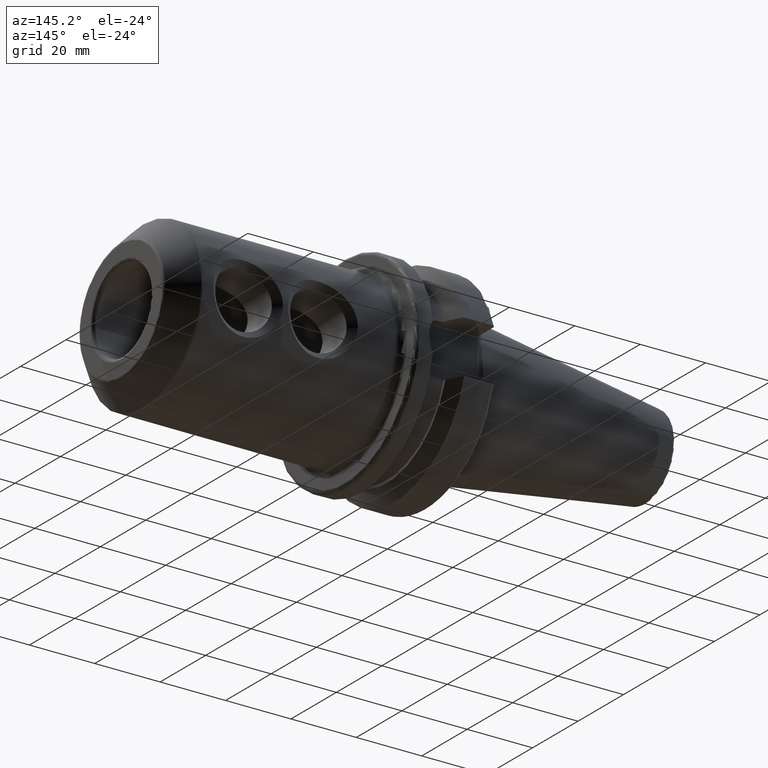
[diagram: clean part render]
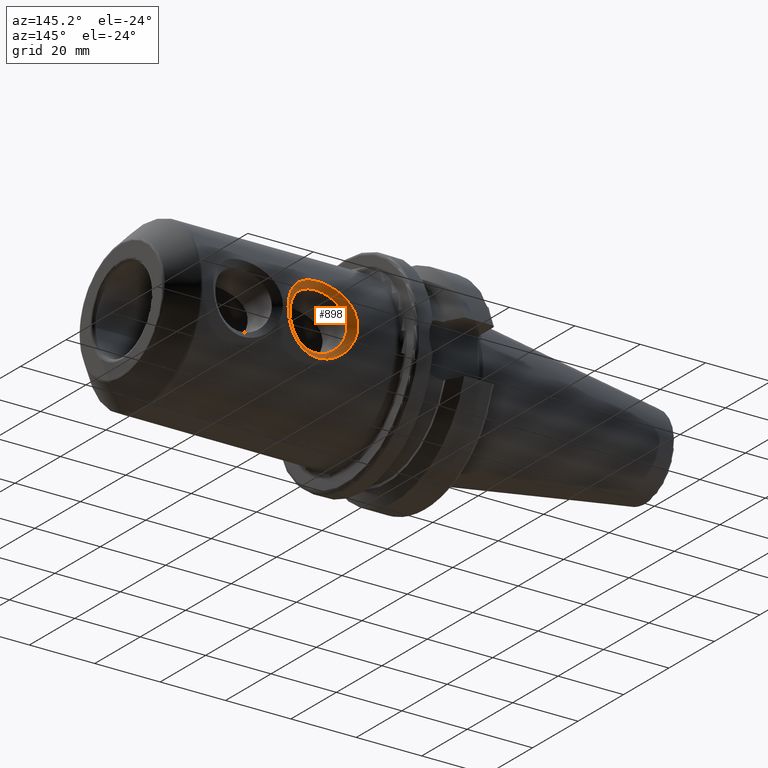
[diagram: same view with one face highlighted and labeled with its STEP entity id]
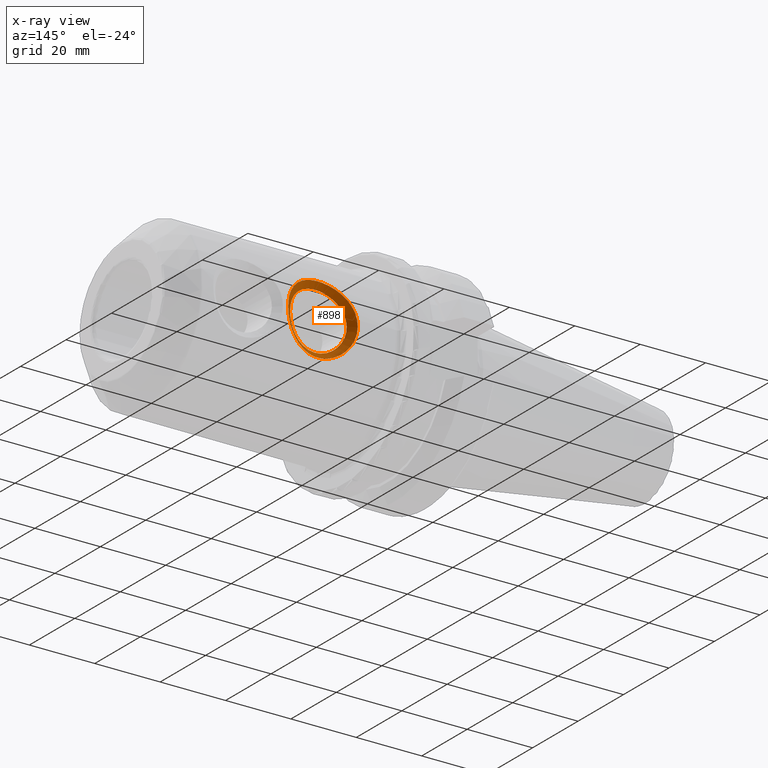
[diagram: x-ray of the same camera — body ghosted, the highlighted face saturated]
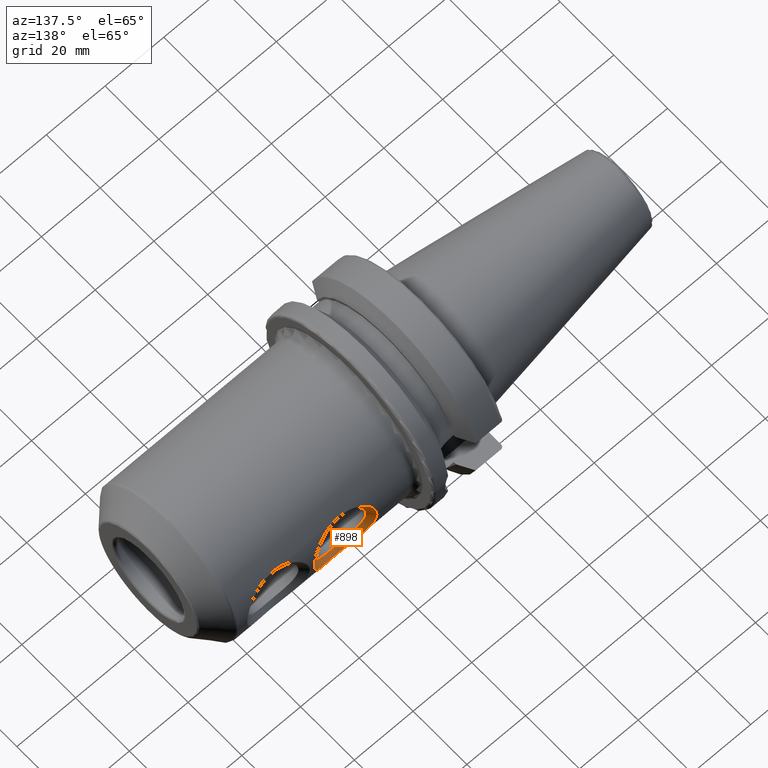
[diagram: same view with one face highlighted and labeled with its STEP entity id]
A machine part, auxiliary view. The second image highlights one B-rep face of the part: STEP entity #898.
The next image is the same camera in x-ray: the body ghosted, the highlighted face saturated — about 0% of this face is hidden behind the body in this view.
A second angle (auxiliary view) of the same face is appended — the face is thin or edge-on in the first view.
In plain terms, the highlighted face is a freeform B-spline surface patch.
Its self-contained STEP definition (entity closure, byte-faithful):
#19=B_SPLINE_SURFACE_WITH_KNOTS('',3,3,((#1556,#1557,#1558,#1559,#1560,
#1561,#1562,#1563,#1564,#1565,#1566,#1567,#1568,#1569,#1570,#1571,#1572,
#1573,#1574,#1575,#1576,#1577,#1578,#1579,#1580,#1581,#1582,#1583,#1584,
#1585,#1586,#1587,#1588,#1589),(#1590,#1591,#1592,#1593,#1594,#1595,#1596,
#1597,#1598,#1599,#1600,#1601,#1602,#1603,#1604,#1605,#1606,#1607,#1608,
#1609,#1610,#1611,#1612,#1613,#1614,#1615,#1616,#1617,#1618,#1619,#1620,
#1621,#1622,#1623),(#1624,#1625,#1626,#1627,#1628,#1629,#1630,#1631,#1632,
#1633,#1634,#1635,#1636,#1637,#1638,#1639,#1640,#1641,#1642,#1643,#1644,
#1645,#1646,#1647,#1648,#1649,#1650,#1651,#1652,#1653,#1654,#1655,#1656,
#1657),(#1658,#1659,#1660,#1661,#1662,#1663,#1664,#1665,#1666,#1667,#1668,
#1669,#1670,#1671,#1672,#1673,#1674,#1675,#1676,#1677,#1678,#1679,#1680,
#1681,#1682,#1683,#1684,#1685,#1686,#1687,#1688,#1689,#1690,#1691)),
 .UNSPECIFIED.,.F.,.T.,.F.,(4,4),(4,1,1,1,1,1,1,1,1,1,1,1,1,1,1,1,1,1,1,
1,1,1,1,1,1,1,1,1,1,1,1,4),(0.,1.),(3.94966474206138,4.13774401549287,4.32582328892437,
4.51390256235586,4.70198183578735,4.89006110921885,5.07814038265034,5.45429892951333,
5.61103165737291,5.70507129408866,5.83045747637632,5.95584365866398,6.20661602323931,
6.26930911438314,6.45738838781463,6.70816075238996,6.95893311696529,7.08431929925295,
7.20970548154061,7.24105202711253,7.33509166382827,7.46047784611594,7.71125021069126,
7.83663639297893,7.96202257526659,8.21279493984191,8.46356730441724,8.65164657784873,
8.69866639620661,8.83972585128023,9.02780512471172,9.21588439814322),
 .UNSPECIFIED.);
#35=B_SPLINE_CURVE_WITH_KNOTS('',3,(#1515,#1516,#1517,#1518,#1519,#1520,
#1521,#1522,#1523,#1524,#1525,#1526,#1527,#1528,#1529,#1530,#1531,#1532,
#1533,#1534,#1535,#1536,#1537,#1538,#1539,#1540,#1541,#1542,#1543,#1544,
#1545,#1546,#1547,#1548),.UNSPECIFIED.,.T.,.F.,(4,1,1,1,1,1,1,1,1,1,1,1,
1,1,1,1,1,1,1,1,1,1,1,1,1,1,1,1,1,1,1,4),(-9.21588439814322,-9.02780512471172,
-8.83972585128023,-8.69866639620661,-8.65164657784873,-8.46356730441724,
-8.21279493984191,-7.96202257526659,-7.83663639297893,-7.71125021069126,
-7.46047784611594,-7.33509166382827,-7.24105202711253,-7.20970548154061,
-7.08431929925295,-6.95893311696529,-6.70816075238996,-6.45738838781463,
-6.26930911438314,-6.20661602323931,-5.95584365866398,-5.83045747637632,
-5.70507129408866,-5.61103165737291,-5.45429892951333,-5.07814038265034,
-4.89006110921885,-4.70198183578735,-4.51390256235586,-4.32582328892437,
-4.13774401549287,-3.94966474206138),.UNSPECIFIED.);
#36=B_SPLINE_CURVE_WITH_KNOTS('',3,(#1694,#1695,#1696,#1697,#1698,#1699,
#1700,#1701,#1702,#1703,#1704,#1705,#1706,#1707,#1708,#1709,#1710,#1711,
#1712,#1713,#1714,#1715,#1716,#1717,#1718,#1719,#1720,#1721,#1722,#1723,
#1724,#1725,#1726,#1727),.UNSPECIFIED.,.T.,.F.,(4,1,1,1,1,1,1,1,1,1,1,1,
1,1,1,1,1,1,1,1,1,1,1,1,1,1,1,1,1,1,1,4),(3.94966474206138,4.13774401549287,
4.32582328892437,4.51390256235586,4.70198183578735,4.89006110921885,5.07814038265034,
5.45429892951333,5.61103165737291,5.70507129408866,5.83045747637632,5.95584365866398,
6.20661602323931,6.26930911438314,6.45738838781463,6.70816075238996,6.95893311696529,
7.08431929925295,7.20970548154061,7.24105202711253,7.33509166382827,7.46047784611594,
7.71125021069126,7.83663639297893,7.96202257526659,8.21279493984191,8.46356730441724,
8.65164657784873,8.69866639620661,8.83972585128023,9.02780512471172,9.21588439814322),
 .UNSPECIFIED.);
#56=LINE('',#1693,#103);
#103=VECTOR('',#1144,10.);
#202=FACE_OUTER_BOUND('',#263,.T.);
#263=EDGE_LOOP('',(#653,#654,#655,#656));
#396=VERTEX_POINT('',#1514);
#399=VERTEX_POINT('',#1692);
#492=EDGE_CURVE('',#396,#396,#35,.T.);
#496=EDGE_CURVE('',#396,#399,#56,.T.);
#497=EDGE_CURVE('',#399,#399,#36,.T.);
#653=ORIENTED_EDGE('',*,*,#496,.T.);
#654=ORIENTED_EDGE('',*,*,#497,.T.);
#655=ORIENTED_EDGE('',*,*,#496,.F.);
#656=ORIENTED_EDGE('',*,*,#492,.T.);
#898=ADVANCED_FACE('',(#202),#19,.T.);
#1144=DIRECTION('',(-0.707106781186548,-0.707106781186547,-1.96261557335472E-16));
#1514=CARTESIAN_POINT('',(61.9114,25.4,-2.77555756156289E-16));
#1515=CARTESIAN_POINT('Ctrl Pts',(61.9114,25.4,-2.77555756156289E-16));
#1516=CARTESIAN_POINT('Ctrl Pts',(61.9114,25.4,-0.771695247790042));
#1517=CARTESIAN_POINT('Ctrl Pts',(61.7399911650118,25.3271318800761,-2.37180460762669));
#1518=CARTESIAN_POINT('Ctrl Pts',(60.9943996541421,25.025290231097,-4.48793340954392));
#1519=CARTESIAN_POINT('Ctrl Pts',(60.1713040633731,24.7223615543875,-5.85704679593909));
#1520=CARTESIAN_POINT('Ctrl Pts',(59.2205042983215,24.3999293587715,-7.09282633498404));
#1521=CARTESIAN_POINT('Ctrl Pts',(57.8503005340776,23.9766848835628,-8.4485181316021));
#1522=CARTESIAN_POINT('Ctrl Pts',(55.2598431977622,23.3838048879771,-9.94602613646829));
#1523=CARTESIAN_POINT('Ctrl Pts',(52.5525433637204,23.1157511349183,-10.5239036660997));
#1524=CARTESIAN_POINT('Ctrl Pts',(50.4712874652806,23.118046552326,-10.522758300789));
#1525=CARTESIAN_POINT('Ctrl Pts',(48.3224311993121,23.2547157468926,-10.2193904046286));
#1526=CARTESIAN_POINT('Ctrl Pts',(46.267658779507,23.5971331420984,-9.43056043559628));
#1527=CARTESIAN_POINT('Ctrl Pts',(44.6246296208833,24.0044983634342,-8.3198830494841));
#1528=CARTESIAN_POINT('Ctrl Pts',(43.8643680424981,24.2236577180062,-7.64756446957003));
#1529=CARTESIAN_POINT('Ctrl Pts',(43.1651701703101,24.4391263006551,-6.93453570642253));
#1530=CARTESIAN_POINT('Ctrl Pts',(42.4279103256792,24.685356638447,-6.02722114071626));
#1531=CARTESIAN_POINT('Ctrl Pts',(41.3432374696174,25.0865462055431,-4.20098242246115));
#1532=CARTESIAN_POINT('Ctrl Pts',(40.5431573482715,25.4186301529308,-1.55714566212273));
#1533=CARTESIAN_POINT('Ctrl Pts',(40.5492359159337,25.416117312402,1.29791745038304));
#1534=CARTESIAN_POINT('Ctrl Pts',(41.1017573767964,25.1870154236672,3.41001178685778));
#1535=CARTESIAN_POINT('Ctrl Pts',(41.9709923194313,24.8499410974905,5.3737216987548));
#1536=CARTESIAN_POINT('Ctrl Pts',(43.0390381299265,24.4668288211528,6.89446260949005));
#1537=CARTESIAN_POINT('Ctrl Pts',(44.5111131867361,24.0329202560619,8.23985161748191));
#1538=CARTESIAN_POINT('Ctrl Pts',(45.7233609094118,23.7326008885747,9.06114198828464));
#1539=CARTESIAN_POINT('Ctrl Pts',(47.1623531991094,23.4470947613146,9.77663376668937));
#1540=CARTESIAN_POINT('Ctrl Pts',(49.7828208942659,23.0833700774164,10.6053337282212));
#1541=CARTESIAN_POINT('Ctrl Pts',(52.8561774593487,23.0845897914445,10.6029617565868));
#1542=CARTESIAN_POINT('Ctrl Pts',(55.9853374865726,23.5446076138927,9.55421965811844));
#1543=CARTESIAN_POINT('Ctrl Pts',(58.0221108925131,24.0309681484285,8.26991865558432));
#1544=CARTESIAN_POINT('Ctrl Pts',(59.624332640913,24.5238136344149,6.70007520025947));
#1545=CARTESIAN_POINT('Ctrl Pts',(60.9309640933498,24.9988716665897,4.67907329865054));
#1546=CARTESIAN_POINT('Ctrl Pts',(61.7374364848113,25.3265203307549,2.37267051828525));
#1547=CARTESIAN_POINT('Ctrl Pts',(61.9114,25.4,0.771695247790007));
#1548=CARTESIAN_POINT('Ctrl Pts',(61.9114,25.4,-5.55111512312578E-16));
#1556=CARTESIAN_POINT('Ctrl Pts',(61.9114,25.4,-5.55111512312578E-16));
#1557=CARTESIAN_POINT('Ctrl Pts',(61.9114,25.4,0.771695247790007));
#1558=CARTESIAN_POINT('Ctrl Pts',(61.7374364848113,25.3265203307549,2.37267051828525));
#1559=CARTESIAN_POINT('Ctrl Pts',(60.9309640933498,24.9988716665897,4.67907329865054));
#1560=CARTESIAN_POINT('Ctrl Pts',(59.624332640913,24.5238136344149,6.70007520025947));
#1561=CARTESIAN_POINT('Ctrl Pts',(58.0221108925131,24.0309681484285,8.26991865558432));
#1562=CARTESIAN_POINT('Ctrl Pts',(55.9853374865726,23.5446076138927,9.55421965811844));
#1563=CARTESIAN_POINT('Ctrl Pts',(52.8561774593487,23.0845897914445,10.6029617565868));
#1564=CARTESIAN_POINT('Ctrl Pts',(49.7828208942659,23.0833700774164,10.6053337282212));
#1565=CARTESIAN_POINT('Ctrl Pts',(47.1623531991094,23.4470947613146,9.77663376668937));
#1566=CARTESIAN_POINT('Ctrl Pts',(45.7233609094118,23.7326008885747,9.06114198828464));
#1567=CARTESIAN_POINT('Ctrl Pts',(44.5111131867361,24.0329202560619,8.23985161748191));
#1568=CARTESIAN_POINT('Ctrl Pts',(43.0390381299265,24.4668288211528,6.89446260949005));
#1569=CARTESIAN_POINT('Ctrl Pts',(41.9709923194313,24.8499410974905,5.3737216987548));
#1570=CARTESIAN_POINT('Ctrl Pts',(41.1017573767964,25.1870154236672,3.41001178685778));
#1571=CARTESIAN_POINT('Ctrl Pts',(40.5492359159337,25.416117312402,1.29791745038304));
#1572=CARTESIAN_POINT('Ctrl Pts',(40.5431573482715,25.4186301529308,-1.55714566212273));
#1573=CARTESIAN_POINT('Ctrl Pts',(41.3432374696174,25.0865462055431,-4.20098242246115));
#1574=CARTESIAN_POINT('Ctrl Pts',(42.4279103256792,24.685356638447,-6.02722114071626));
#1575=CARTESIAN_POINT('Ctrl Pts',(43.1651701703101,24.4391263006551,-6.93453570642253));
#1576=CARTESIAN_POINT('Ctrl Pts',(43.8643680424981,24.2236577180062,-7.64756446957003));
#1577=CARTESIAN_POINT('Ctrl Pts',(44.6246296208833,24.0044983634342,-8.3198830494841));
#1578=CARTESIAN_POINT('Ctrl Pts',(46.267658779507,23.5971331420984,-9.43056043559628));
#1579=CARTESIAN_POINT('Ctrl Pts',(48.3224311993121,23.2547157468926,-10.2193904046286));
#1580=CARTESIAN_POINT('Ctrl Pts',(50.4712874652806,23.118046552326,-10.522758300789));
#1581=CARTESIAN_POINT('Ctrl Pts',(52.5525433637204,23.1157511349183,-10.5239036660997));
#1582=CARTESIAN_POINT('Ctrl Pts',(55.2598431977622,23.3838048879771,-9.94602613646829));
#1583=CARTESIAN_POINT('Ctrl Pts',(57.8503005340776,23.9766848835628,-8.4485181316021));
#1584=CARTESIAN_POINT('Ctrl Pts',(59.2205042983215,24.3999293587715,-7.09282633498404));
#1585=CARTESIAN_POINT('Ctrl Pts',(60.1713040633731,24.7223615543875,-5.85704679593909));
#1586=CARTESIAN_POINT('Ctrl Pts',(60.9943996541421,25.025290231097,-4.48793340954392));
#1587=CARTESIAN_POINT('Ctrl Pts',(61.7399911650118,25.3271318800761,-2.37180460762669));
#1588=CARTESIAN_POINT('Ctrl Pts',(61.9114,25.4,-0.771695247790042));
#1589=CARTESIAN_POINT('Ctrl Pts',(61.9114,25.4,-2.77555756156289E-16));
#1590=CARTESIAN_POINT('Ctrl Pts',(61.2447333333333,24.7333333333333,-7.40148683083438E-16));
#1591=CARTESIAN_POINT('Ctrl Pts',(61.2447333333333,24.7333333333333,0.7069855894408));
#1592=CARTESIAN_POINT('Ctrl Pts',(61.0889616207494,24.6695270151585,2.17372884191534));
#1593=CARTESIAN_POINT('Ctrl Pts',(60.3621591767821,24.3835289251207,4.30509198884616));
#1594=CARTESIAN_POINT('Ctrl Pts',(59.1677860466987,23.9646777919745,6.20254161922104));
#1595=CARTESIAN_POINT('Ctrl Pts',(57.6817717918878,23.5258688004918,7.70219782248225));
#1596=CARTESIAN_POINT('Ctrl Pts',(55.7671356392392,23.0892946944218,8.94911130966596));
#1597=CARTESIAN_POINT('Ctrl Pts',(52.7911621125706,22.6734556297245,9.98395179806838));
#1598=CARTESIAN_POINT('Ctrl Pts',(49.8421468100004,22.6723217713955,9.98639818409622));
#1599=CARTESIAN_POINT('Ctrl Pts',(47.3487285407155,23.0011581882307,9.16854024996272));
#1600=CARTESIAN_POINT('Ctrl Pts',(45.9887378312617,23.2580869772785,8.47008868840656));
#1601=CARTESIAN_POINT('Ctrl Pts',(44.851367922731,23.5272773586981,7.67529775205578));
#1602=CARTESIAN_POINT('Ctrl Pts',(43.4823940370027,23.9141556291463,6.38717077792263));
#1603=CARTESIAN_POINT('Ctrl Pts',(42.5044539877144,24.2524352332204,4.95489465379959));
#1604=CARTESIAN_POINT('Ctrl Pts',(41.7161849643699,24.5479046054376,3.13113006799037));
#1605=CARTESIAN_POINT('Ctrl Pts',(41.2198420603825,24.7473817104704,1.18645216011521));
#1606=CARTESIAN_POINT('Ctrl Pts',(41.214310282294,24.7496169076289,-1.42341882745942));
#1607=CARTESIAN_POINT('Ctrl Pts',(41.9330776329512,24.4604056373309,-3.86034661506238));
#1608=CARTESIAN_POINT('Ctrl Pts',(42.9225520916996,24.1072012715033,-5.5701798719287));
#1609=CARTESIAN_POINT('Ctrl Pts',(43.6018279715672,23.8889944554488,-6.42881904041131));
#1610=CARTESIAN_POINT('Ctrl Pts',(44.2499510504767,23.6973287496202,-7.1082941397485));
#1611=CARTESIAN_POINT('Ctrl Pts',(44.9578082687025,23.5018253477278,-7.75255638489856));
#1612=CARTESIAN_POINT('Ctrl Pts',(46.4992739666946,23.13666776465,-8.82763579170448));
#1613=CARTESIAN_POINT('Ctrl Pts',(48.4506749021776,22.8273355547878,-9.60492329244439));
#1614=CARTESIAN_POINT('Ctrl Pts',(50.5047714205568,22.7036023910288,-9.90533755108544));
#1615=CARTESIAN_POINT('Ctrl Pts',(52.4965696089097,22.701454691795,-9.90693800894312));
#1616=CARTESIAN_POINT('Ctrl Pts',(55.0824772072718,22.9444269556295,-9.33269048920593));
#1617=CARTESIAN_POINT('Ctrl Pts',(57.522937124137,23.477655557275,-7.87229133567426));
#1618=CARTESIAN_POINT('Ctrl Pts',(58.7931084770233,23.8543399150261,-6.57790071279669));
#1619=CARTESIAN_POINT('Ctrl Pts',(59.667869670456,24.1397604828142,-5.41094124953641));
#1620=CARTESIAN_POINT('Ctrl Pts',(60.4191185357353,24.406547412978,-4.12863405162999));
#1621=CARTESIAN_POINT('Ctrl Pts',(61.0914017090038,24.6700900666847,-2.17280850307922));
#1622=CARTESIAN_POINT('Ctrl Pts',(61.2447333333333,24.7333333333333,-0.70698558944082));
#1623=CARTESIAN_POINT('Ctrl Pts',(61.2447333333333,24.7333333333333,-3.70074341541719E-16));
#1624=CARTESIAN_POINT('Ctrl Pts',(60.5780666666667,24.0666666666667,-9.25185853854297E-16));
#1625=CARTESIAN_POINT('Ctrl Pts',(60.5780666666667,24.0666666666667,0.642275931091594));
#1626=CARTESIAN_POINT('Ctrl Pts',(60.4404867566874,24.012533699562,1.97478716554543));
#1627=CARTESIAN_POINT('Ctrl Pts',(59.7933542602145,23.7681861836516,3.93111067904178));
#1628=CARTESIAN_POINT('Ctrl Pts',(58.7112394524843,23.4055419495342,5.7050080381826));
#1629=CARTESIAN_POINT('Ctrl Pts',(57.3414326912624,23.0207694525551,7.13447698938017));
#1630=CARTESIAN_POINT('Ctrl Pts',(55.5489337919056,22.6339817749509,8.34400296121348));
#1631=CARTESIAN_POINT('Ctrl Pts',(52.7261467657924,22.2623214680045,9.36494183954996));
#1632=CARTESIAN_POINT('Ctrl Pts',(49.9014727257349,22.2612734653746,9.36746263997126));
#1633=CARTESIAN_POINT('Ctrl Pts',(47.5351038823215,22.5552216151467,8.56044673323609));
#1634=CARTESIAN_POINT('Ctrl Pts',(46.2541147531116,22.7835730659824,7.87903538852848));
#1635=CARTESIAN_POINT('Ctrl Pts',(45.1916226587259,23.0216344613343,7.11074388662964));
#1636=CARTESIAN_POINT('Ctrl Pts',(43.9257499440789,23.3614824371397,5.87987894635521));
#1637=CARTESIAN_POINT('Ctrl Pts',(43.0379156559974,23.6549293689502,4.53606760884439));
#1638=CARTESIAN_POINT('Ctrl Pts',(42.3306125519435,23.9087937872079,2.85224834912296));
#1639=CARTESIAN_POINT('Ctrl Pts',(41.8904482048312,24.0786461085388,1.07498686984738));
#1640=CARTESIAN_POINT('Ctrl Pts',(41.8854632163164,24.0806036623271,-1.2896919927961));
#1641=CARTESIAN_POINT('Ctrl Pts',(42.522917796285,23.8342650691186,-3.51971080766362));
#1642=CARTESIAN_POINT('Ctrl Pts',(43.4171938577199,23.5290459045595,-5.11313860314113));
#1643=CARTESIAN_POINT('Ctrl Pts',(44.0384857728243,23.3388626102426,-5.92310237440009));
#1644=CARTESIAN_POINT('Ctrl Pts',(44.6355340584554,23.1709997812342,-6.56902380992698));
#1645=CARTESIAN_POINT('Ctrl Pts',(45.2909869165217,22.9991523320213,-7.18522972031303));
#1646=CARTESIAN_POINT('Ctrl Pts',(46.7308891538821,22.6762023872015,-8.22471114781268));
#1647=CARTESIAN_POINT('Ctrl Pts',(48.578918605043,22.3999553626831,-8.99045618026015));
#1648=CARTESIAN_POINT('Ctrl Pts',(50.5382553758329,22.2891582297315,-9.28791680138192));
#1649=CARTESIAN_POINT('Ctrl Pts',(52.440595854099,22.2871582486717,-9.28997235178656));
#1650=CARTESIAN_POINT('Ctrl Pts',(54.9051112167815,22.5050490232819,-8.71935484194357));
#1651=CARTESIAN_POINT('Ctrl Pts',(57.1955737141964,22.9786262309871,-7.29606453974641));
#1652=CARTESIAN_POINT('Ctrl Pts',(58.3657126557251,23.3087504712808,-6.06297509060933));
#1653=CARTESIAN_POINT('Ctrl Pts',(59.164435277539,23.5571594112409,-4.96483570313373));
#1654=CARTESIAN_POINT('Ctrl Pts',(59.8438374173285,23.7878045948591,-3.76933469371605));
#1655=CARTESIAN_POINT('Ctrl Pts',(60.4428122529959,24.0130482532933,-1.97381239853175));
#1656=CARTESIAN_POINT('Ctrl Pts',(60.5780666666667,24.0666666666667,-0.642275931091598));
#1657=CARTESIAN_POINT('Ctrl Pts',(60.5780666666667,24.0666666666667,-4.62592926927149E-16));
#1658=CARTESIAN_POINT('Ctrl Pts',(59.9114,23.4,-1.11022302462516E-15));
#1659=CARTESIAN_POINT('Ctrl Pts',(59.9114,23.4,0.577566272742387));
#1660=CARTESIAN_POINT('Ctrl Pts',(59.7920118926255,23.3555403839655,1.77584548917551));
#1661=CARTESIAN_POINT('Ctrl Pts',(59.2245493436468,23.1528434421825,3.5571293692374));
#1662=CARTESIAN_POINT('Ctrl Pts',(58.25469285827,22.8464061070938,5.20747445714417));
#1663=CARTESIAN_POINT('Ctrl Pts',(57.0010935906369,22.5156701046183,6.5667561562781));
#1664=CARTESIAN_POINT('Ctrl Pts',(55.3307319445722,22.1786688554799,7.73889461276101));
#1665=CARTESIAN_POINT('Ctrl Pts',(52.6611314190143,21.8511873062845,8.74593188103154));
#1666=CARTESIAN_POINT('Ctrl Pts',(49.9607986414695,21.8502251593537,8.74852709584631));
#1667=CARTESIAN_POINT('Ctrl Pts',(47.7214792239275,22.1092850420628,7.95235321650945));
#1668=CARTESIAN_POINT('Ctrl Pts',(46.5194916749615,22.3090591546863,7.28798208865039));
#1669=CARTESIAN_POINT('Ctrl Pts',(45.5318773947208,22.5159915639706,6.54619002120351));
#1670=CARTESIAN_POINT('Ctrl Pts',(44.3691058511552,22.8088092451332,5.37258711478779));
#1671=CARTESIAN_POINT('Ctrl Pts',(43.5713773242805,23.05742350468,4.11724056388918));
#1672=CARTESIAN_POINT('Ctrl Pts',(42.945040139517,23.2696829689783,2.57336663025555));
#1673=CARTESIAN_POINT('Ctrl Pts',(42.56105434928,23.4099105066071,0.963521579579551));
#1674=CARTESIAN_POINT('Ctrl Pts',(42.5566161503388,23.4115904170253,-1.15596515813279));
#1675=CARTESIAN_POINT('Ctrl Pts',(43.1127579596188,23.2081245009063,-3.17907500026486));
#1676=CARTESIAN_POINT('Ctrl Pts',(43.9118356237402,22.9508905376158,-4.65609733435357));
#1677=CARTESIAN_POINT('Ctrl Pts',(44.4751435740814,22.7887307650363,-5.41738570838886));
#1678=CARTESIAN_POINT('Ctrl Pts',(45.0211170664341,22.6446708128482,-6.02975348010545));
#1679=CARTESIAN_POINT('Ctrl Pts',(45.624165564341,22.4964793163149,-6.61790305572749));
#1680=CARTESIAN_POINT('Ctrl Pts',(46.9625043410697,22.2157370097531,-7.62178650392087));
#1681=CARTESIAN_POINT('Ctrl Pts',(48.7071623079084,21.9725751705783,-8.3759890680759));
#1682=CARTESIAN_POINT('Ctrl Pts',(50.571739331109,21.8747140684343,-8.67049605167841));
#1683=CARTESIAN_POINT('Ctrl Pts',(52.3846220992883,21.8728618055484,-8.67300669463001));
#1684=CARTESIAN_POINT('Ctrl Pts',(54.7277452262911,22.0656710909343,-8.10601919468122));
#1685=CARTESIAN_POINT('Ctrl Pts',(56.8682103042558,22.4795969046993,-6.71983774381856));
#1686=CARTESIAN_POINT('Ctrl Pts',(57.9383168344269,22.7631610275354,-5.54804946842198));
#1687=CARTESIAN_POINT('Ctrl Pts',(58.661000884622,22.9745583396675,-4.51873015673104));
#1688=CARTESIAN_POINT('Ctrl Pts',(59.2685562989217,23.1690617767401,-3.41003533580211));
#1689=CARTESIAN_POINT('Ctrl Pts',(59.7942227969879,23.3560064399019,-1.77481629398428));
#1690=CARTESIAN_POINT('Ctrl Pts',(59.9114,23.4,-0.577566272742376));
#1691=CARTESIAN_POINT('Ctrl Pts',(59.9114,23.4,-5.55111512312578E-16));
#1692=CARTESIAN_POINT('',(59.9114,23.4,-1.11022302462516E-15));
#1693=CARTESIAN_POINT('',(61.9114,25.4,-5.55111512312578E-16));
#1694=CARTESIAN_POINT('Ctrl Pts',(59.9114,23.4,-1.11022302462516E-15));
#1695=CARTESIAN_POINT('Ctrl Pts',(59.9114,23.4,0.577566272742387));
#1696=CARTESIAN_POINT('Ctrl Pts',(59.7920118926255,23.3555403839655,1.77584548917551));
#1697=CARTESIAN_POINT('Ctrl Pts',(59.2245493436468,23.1528434421825,3.5571293692374));
#1698=CARTESIAN_POINT('Ctrl Pts',(58.25469285827,22.8464061070938,5.20747445714417));
#1699=CARTESIAN_POINT('Ctrl Pts',(57.0010935906369,22.5156701046183,6.5667561562781));
#1700=CARTESIAN_POINT('Ctrl Pts',(55.3307319445722,22.1786688554799,7.73889461276101));
#1701=CARTESIAN_POINT('Ctrl Pts',(52.6611314190143,21.8511873062845,8.74593188103154));
#1702=CARTESIAN_POINT('Ctrl Pts',(49.9607986414695,21.8502251593537,8.74852709584631));
#1703=CARTESIAN_POINT('Ctrl Pts',(47.7214792239275,22.1092850420628,7.95235321650945));
#1704=CARTESIAN_POINT('Ctrl Pts',(46.5194916749615,22.3090591546863,7.28798208865039));
#1705=CARTESIAN_POINT('Ctrl Pts',(45.5318773947208,22.5159915639706,6.54619002120351));
#1706=CARTESIAN_POINT('Ctrl Pts',(44.3691058511552,22.8088092451332,5.37258711478779));
#1707=CARTESIAN_POINT('Ctrl Pts',(43.5713773242805,23.05742350468,4.11724056388918));
#1708=CARTESIAN_POINT('Ctrl Pts',(42.945040139517,23.2696829689783,2.57336663025555));
#1709=CARTESIAN_POINT('Ctrl Pts',(42.56105434928,23.4099105066071,0.963521579579551));
#1710=CARTESIAN_POINT('Ctrl Pts',(42.5566161503388,23.4115904170253,-1.15596515813279));
#1711=CARTESIAN_POINT('Ctrl Pts',(43.1127579596188,23.2081245009063,-3.17907500026486));
#1712=CARTESIAN_POINT('Ctrl Pts',(43.9118356237402,22.9508905376158,-4.65609733435357));
#1713=CARTESIAN_POINT('Ctrl Pts',(44.4751435740814,22.7887307650363,-5.41738570838886));
#1714=CARTESIAN_POINT('Ctrl Pts',(45.0211170664341,22.6446708128482,-6.02975348010545));
#1715=CARTESIAN_POINT('Ctrl Pts',(45.624165564341,22.4964793163149,-6.61790305572749));
#1716=CARTESIAN_POINT('Ctrl Pts',(46.9625043410697,22.2157370097531,-7.62178650392087));
#1717=CARTESIAN_POINT('Ctrl Pts',(48.7071623079084,21.9725751705783,-8.3759890680759));
#1718=CARTESIAN_POINT('Ctrl Pts',(50.571739331109,21.8747140684343,-8.67049605167841));
#1719=CARTESIAN_POINT('Ctrl Pts',(52.3846220992883,21.8728618055484,-8.67300669463001));
#1720=CARTESIAN_POINT('Ctrl Pts',(54.7277452262911,22.0656710909343,-8.10601919468122));
#1721=CARTESIAN_POINT('Ctrl Pts',(56.8682103042558,22.4795969046993,-6.71983774381856));
#1722=CARTESIAN_POINT('Ctrl Pts',(57.9383168344269,22.7631610275354,-5.54804946842198));
#1723=CARTESIAN_POINT('Ctrl Pts',(58.661000884622,22.9745583396675,-4.51873015673104));
#1724=CARTESIAN_POINT('Ctrl Pts',(59.2685562989217,23.1690617767401,-3.41003533580211));
#1725=CARTESIAN_POINT('Ctrl Pts',(59.7942227969879,23.3560064399019,-1.77481629398428));
#1726=CARTESIAN_POINT('Ctrl Pts',(59.9114,23.4,-0.577566272742376));
#1727=CARTESIAN_POINT('Ctrl Pts',(59.9114,23.4,-5.55111512312578E-16));